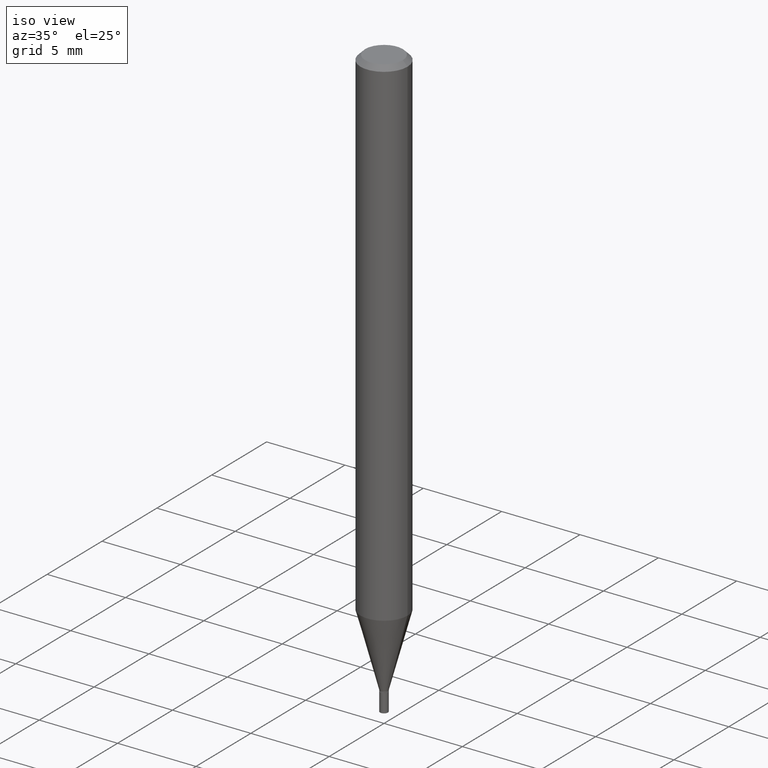
[diagram: clean part render]
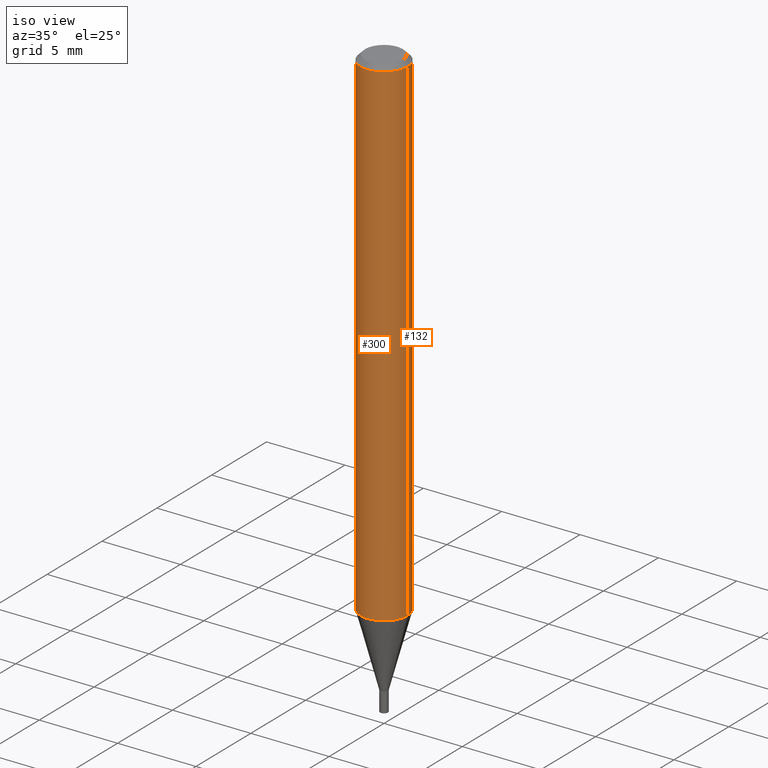
[diagram: same view with one multi-face feature highlighted, each face labeled with its STEP entity id]
A machine part, iso view. The highlighted faces form ONE feature: a constant-radius fillet chain: 2 tangent blend faces with common blend radius 1.4999 mm. The faces share edges in the B-rep.
Their STEP definitions:
[1] entity #300 (Cylinder):
#28 = CYLINDRICAL_SURFACE ( 'NONE', #367, 0.05905000000000008159 ) ;
#31 = ORIENTED_EDGE ( 'NONE', *, *, #123, .F. ) ;
#49 = DIRECTION ( 'NONE',  ( -2.445468806185136597E-29, 3.491481338843145583E-15, 1.000000000000000000 ) ) ;
#76 = DIRECTION ( 'NONE',  ( 1.000000000000000000, -6.982962677686267499E-15, 4.876176775795936353E-29 ) ) ;
#81 = VECTOR ( 'NONE', #432, 39.37007874015748143 ) ;
#123 = EDGE_CURVE ( 'NONE', #198, #245, #184, .T. ) ;
#150 = EDGE_LOOP ( 'NONE', ( #407, #473, #482, #31 ) ) ;
#154 = VECTOR ( 'NONE', #474, 39.37007874015748143 ) ;
#170 = CARTESIAN_POINT ( 'NONE',  ( 2.888098660104662452E-31, -4.123439461173777798E-17, -0.01181000000000006697 ) ) ;
#181 = EDGE_CURVE ( 'NONE', #307, #198, #395, .T. ) ;
#184 = CIRCLE ( 'NONE', #433, 0.05904999999999999832 ) ;
#187 = CARTESIAN_POINT ( 'NONE',  ( -0.05905000000000008159, 4.195754854663397395E-16, -2.904631170795525745E-30 ) ) ;
#198 = VERTEX_POINT ( 'NONE', #268 ) ;
#203 = DIRECTION ( 'NONE',  ( -2.445468806185136597E-29, 3.491481338843145583E-15, 1.000000000000000000 ) ) ;
#231 = CARTESIAN_POINT ( 'NONE',  ( -0.05905000000000017180, -3.973696478099721352E-15, -1.258283100267610921 ) ) ;
#245 = VERTEX_POINT ( 'NONE', #365 ) ;
#257 = EDGE_CURVE ( 'NONE', #347, #245, #475, .T. ) ;
#268 = CARTESIAN_POINT ( 'NONE',  ( -0.05904999999999999832, -1.797677693622558610E-15, -0.01181000000000006697 ) ) ;
#281 = CIRCLE ( 'NONE', #425, 0.05905000000000015792 ) ;
#300 = ADVANCED_FACE ( 'NONE', ( #366 ), #28, .T. ) ;
#307 = VERTEX_POINT ( 'NONE', #231 ) ;
#331 = CARTESIAN_POINT ( 'NONE',  ( 0.05905000000000008159, -4.123439461173746736E-16, 2.879382386107504424E-30 ) ) ;
#339 = CARTESIAN_POINT ( 'NONE',  ( 3.077092071054366958E-29, -4.393271963566061633E-15, -1.258283100267610921 ) ) ;
#346 = DIRECTION ( 'NONE',  ( -2.445468806185136597E-29, 3.491481338843145583E-15, 1.000000000000000000 ) ) ;
#347 = VERTEX_POINT ( 'NONE', #370 ) ;
#358 = EDGE_CURVE ( 'NONE', #307, #347, #281, .T. ) ;
#365 = CARTESIAN_POINT ( 'NONE',  ( 0.05904999999999999832, -4.535783407291118600E-16, -0.01181000000000006697 ) ) ;
#366 = FACE_OUTER_BOUND ( 'NONE', #150, .T. ) ;
#367 = AXIS2_PLACEMENT_3D ( 'NONE', #408, #203, #76 ) ;
#370 = CARTESIAN_POINT ( 'NONE',  ( 0.05905000000000017180, -4.805615909683436554E-15, -1.258283100267610921 ) ) ;
#385 = DIRECTION ( 'NONE',  ( 1.000000000000000000, -6.982962677686266711E-15, 0.000000000000000000 ) ) ;
#395 = LINE ( 'NONE', #187, #81 ) ;
#407 = ORIENTED_EDGE ( 'NONE', *, *, #181, .F. ) ;
#408 = CARTESIAN_POINT ( 'NONE',  ( 0.000000000000000000, 0.000000000000000000, 0.000000000000000000 ) ) ;
#425 = AXIS2_PLACEMENT_3D ( 'NONE', #339, #346, #489 ) ;
#432 = DIRECTION ( 'NONE',  ( -2.445468806185136877E-29, 3.491481338843145188E-15, 1.000000000000000000 ) ) ;
#433 = AXIS2_PLACEMENT_3D ( 'NONE', #170, #49, #385 ) ;
#473 = ORIENTED_EDGE ( 'NONE', *, *, #358, .T. ) ;
#474 = DIRECTION ( 'NONE',  ( -2.445468806185136877E-29, 3.491481338843145188E-15, 1.000000000000000000 ) ) ;
#475 = LINE ( 'NONE', #331, #154 ) ;
#482 = ORIENTED_EDGE ( 'NONE', *, *, #257, .T. ) ;
#489 = DIRECTION ( 'NONE',  ( 1.000000000000000000, -6.982962677686270655E-15, 0.000000000000000000 ) ) ;
[2] entity #132 (Cylinder):
#3 = DIRECTION ( 'NONE',  ( -2.445468806185136597E-29, 3.491481338843145583E-15, 1.000000000000000000 ) ) ;
#9 = AXIS2_PLACEMENT_3D ( 'NONE', #478, #259, #104 ) ;
#14 = DIRECTION ( 'NONE',  ( -2.445468806185136597E-29, 3.491481338843145583E-15, 1.000000000000000000 ) ) ;
#57 = EDGE_LOOP ( 'NONE', ( #429, #204, #323, #311 ) ) ;
#81 = VECTOR ( 'NONE', #432, 39.37007874015748143 ) ;
#96 = CARTESIAN_POINT ( 'NONE',  ( 0.000000000000000000, 0.000000000000000000, 0.000000000000000000 ) ) ;
#104 = DIRECTION ( 'NONE',  ( 1.000000000000000000, -6.982962677686266711E-15, 0.000000000000000000 ) ) ;
#127 = CARTESIAN_POINT ( 'NONE',  ( 3.077092071054366958E-29, -4.393271963566061633E-15, -1.258283100267610921 ) ) ;
#128 = AXIS2_PLACEMENT_3D ( 'NONE', #127, #3, #241 ) ;
#132 = ADVANCED_FACE ( 'NONE', ( #209 ), #135, .T. ) ;
#135 = CYLINDRICAL_SURFACE ( 'NONE', #290, 0.05905000000000008159 ) ;
#154 = VECTOR ( 'NONE', #474, 39.37007874015748143 ) ;
#175 = EDGE_CURVE ( 'NONE', #245, #198, #304, .T. ) ;
#181 = EDGE_CURVE ( 'NONE', #307, #198, #395, .T. ) ;
#187 = CARTESIAN_POINT ( 'NONE',  ( -0.05905000000000008159, 4.195754854663397395E-16, -2.904631170795525745E-30 ) ) ;
#198 = VERTEX_POINT ( 'NONE', #268 ) ;
#204 = ORIENTED_EDGE ( 'NONE', *, *, #181, .T. ) ;
#209 = FACE_OUTER_BOUND ( 'NONE', #57, .T. ) ;
#231 = CARTESIAN_POINT ( 'NONE',  ( -0.05905000000000017180, -3.973696478099721352E-15, -1.258283100267610921 ) ) ;
#241 = DIRECTION ( 'NONE',  ( 1.000000000000000000, -6.982962677686270655E-15, 0.000000000000000000 ) ) ;
#244 = CIRCLE ( 'NONE', #128, 0.05905000000000015792 ) ;
#245 = VERTEX_POINT ( 'NONE', #365 ) ;
#257 = EDGE_CURVE ( 'NONE', #347, #245, #475, .T. ) ;
#259 = DIRECTION ( 'NONE',  ( -2.445468806185136597E-29, 3.491481338843145583E-15, 1.000000000000000000 ) ) ;
#268 = CARTESIAN_POINT ( 'NONE',  ( -0.05904999999999999832, -1.797677693622558610E-15, -0.01181000000000006697 ) ) ;
#290 = AXIS2_PLACEMENT_3D ( 'NONE', #96, #14, #423 ) ;
#304 = CIRCLE ( 'NONE', #9, 0.05904999999999999832 ) ;
#307 = VERTEX_POINT ( 'NONE', #231 ) ;
#311 = ORIENTED_EDGE ( 'NONE', *, *, #257, .F. ) ;
#323 = ORIENTED_EDGE ( 'NONE', *, *, #175, .F. ) ;
#331 = CARTESIAN_POINT ( 'NONE',  ( 0.05905000000000008159, -4.123439461173746736E-16, 2.879382386107504424E-30 ) ) ;
#347 = VERTEX_POINT ( 'NONE', #370 ) ;
#365 = CARTESIAN_POINT ( 'NONE',  ( 0.05904999999999999832, -4.535783407291118600E-16, -0.01181000000000006697 ) ) ;
#370 = CARTESIAN_POINT ( 'NONE',  ( 0.05905000000000017180, -4.805615909683436554E-15, -1.258283100267610921 ) ) ;
#395 = LINE ( 'NONE', #187, #81 ) ;
#396 = EDGE_CURVE ( 'NONE', #347, #307, #244, .T. ) ;
#423 = DIRECTION ( 'NONE',  ( 1.000000000000000000, -6.982962677686267499E-15, 4.876176775795936353E-29 ) ) ;
#429 = ORIENTED_EDGE ( 'NONE', *, *, #396, .T. ) ;
#432 = DIRECTION ( 'NONE',  ( -2.445468806185136877E-29, 3.491481338843145188E-15, 1.000000000000000000 ) ) ;
#474 = DIRECTION ( 'NONE',  ( -2.445468806185136877E-29, 3.491481338843145188E-15, 1.000000000000000000 ) ) ;
#475 = LINE ( 'NONE', #331, #154 ) ;
#478 = CARTESIAN_POINT ( 'NONE',  ( 2.888098660104662452E-31, -4.123439461173777798E-17, -0.01181000000000006697 ) ) ;